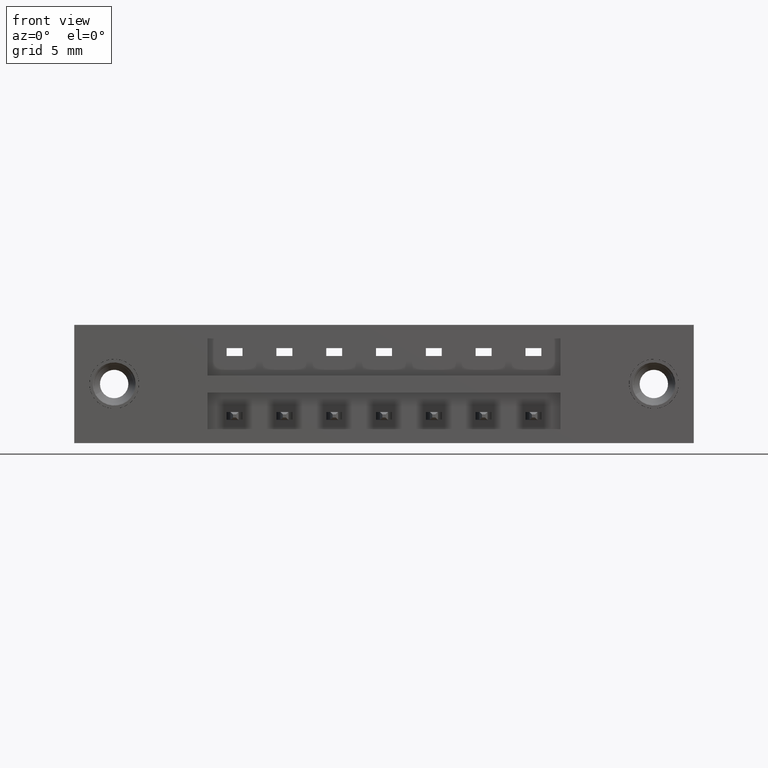
[diagram: clean part render]
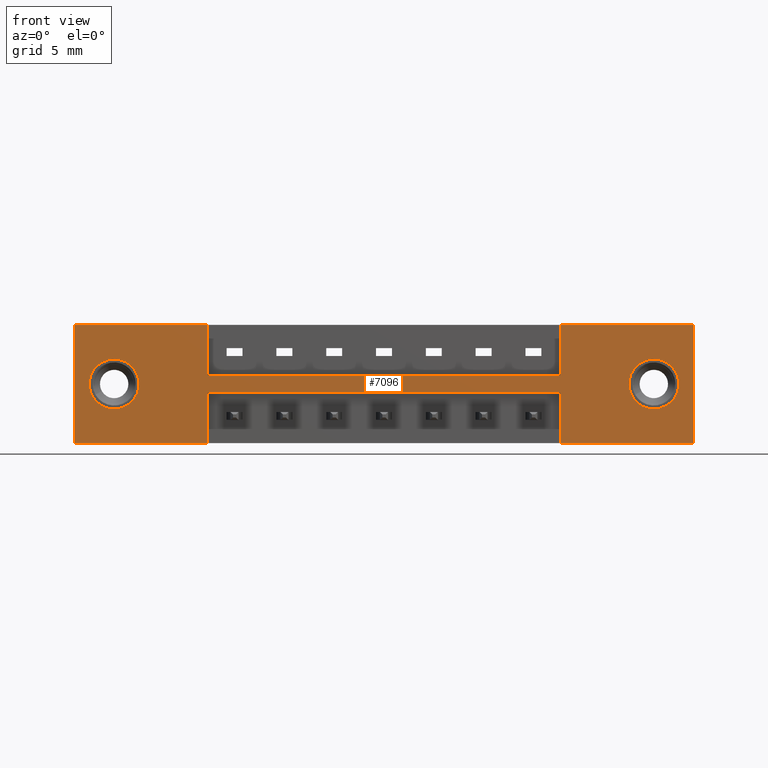
[diagram: same view with one face highlighted and labeled with its STEP entity id]
A machine part, front view. The second image highlights one B-rep face of the part: STEP entity #7096.
In plain terms, the highlighted planar face has unit normal (0, -1, 0).
Its self-contained STEP definition (entity closure, byte-faithful):
#37 = DIRECTION ( 'NONE',  ( 0.0000000000000000000, 0.0000000000000000000, 1.000000000000000000 ) ) ;
#49 = CARTESIAN_POINT ( 'NONE',  ( 1.522500000000000200, 0.0000000000000000000, -0.2115000000000000200 ) ) ;
#144 = ORIENTED_EDGE ( 'NONE', *, *, #4954, .F. ) ;
#157 = LINE ( 'NONE', #4766, #9964 ) ;
#249 = CARTESIAN_POINT ( 'NONE',  ( 0.4174999999999999800, 0.0000000000000000000, -0.1585000000000000300 ) ) ;
#330 = VERTEX_POINT ( 'NONE', #5168 ) ;
#356 = ORIENTED_EDGE ( 'NONE', *, *, #5249, .F. ) ;
#391 = FACE_OUTER_BOUND ( 'NONE', #4185, .T. ) ;
#471 = ORIENTED_EDGE ( 'NONE', *, *, #2980, .F. ) ;
#515 = DIRECTION ( 'NONE',  ( 1.000000000000000000, 0.0000000000000000000, 0.0000000000000000000 ) ) ;
#628 = VECTOR ( 'NONE', #5884, 39.37007874015748100 ) ;
#645 = CARTESIAN_POINT ( 'NONE',  ( 1.522500000000000200, 0.0000000000000000000, -0.1585000000000000000 ) ) ;
#754 = CIRCLE ( 'NONE', #3179, 0.07800000000000001400 ) ;
#899 = EDGE_CURVE ( 'NONE', #6420, #7991, #7041, .T. ) ;
#916 = VECTOR ( 'NONE', #9408, 39.37007874015748100 ) ;
#1042 = DIRECTION ( 'NONE',  ( 0.0000000000000000000, -0.0000000000000000000, -1.000000000000000000 ) ) ;
#1121 = VERTEX_POINT ( 'NONE', #7771 ) ;
#1147 = CARTESIAN_POINT ( 'NONE',  ( 0.0000000000000000000, 0.0000000000000000000, 0.0000000000000000000 ) ) ;
#1166 = CIRCLE ( 'NONE', #5996, 0.07800000000000009700 ) ;
#1387 = LINE ( 'NONE', #645, #3244 ) ;
#1440 = ORIENTED_EDGE ( 'NONE', *, *, #7711, .T. ) ;
#1461 = EDGE_CURVE ( 'NONE', #330, #6774, #3519, .T. ) ;
#1501 = EDGE_CURVE ( 'NONE', #6774, #330, #1166, .T. ) ;
#1563 = ORIENTED_EDGE ( 'NONE', *, *, #7123, .F. ) ;
#1642 = EDGE_CURVE ( 'NONE', #9891, #7034, #1933, .T. ) ;
#1716 = VERTEX_POINT ( 'NONE', #7749 ) ;
#1933 = LINE ( 'NONE', #49, #6085 ) ;
#1972 = VERTEX_POINT ( 'NONE', #5154 ) ;
#2149 = DIRECTION ( 'NONE',  ( 0.0000000000000000000, 0.0000000000000000000, -1.000000000000000000 ) ) ;
#2200 = VERTEX_POINT ( 'NONE', #4644 ) ;
#2238 = CIRCLE ( 'NONE', #8976, 0.07800000000000001400 ) ;
#2336 = DIRECTION ( 'NONE',  ( 0.0000000000000000000, 0.0000000000000000000, -1.000000000000000000 ) ) ;
#2503 = EDGE_LOOP ( 'NONE', ( #5920, #4828 ) ) ;
#2519 = FACE_BOUND ( 'NONE', #2503, .T. ) ;
#2520 = CARTESIAN_POINT ( 'NONE',  ( 1.940000000000000200, 0.0000000000000000000, 0.0000000000000000000 ) ) ;
#2541 = LINE ( 'NONE', #4036, #916 ) ;
#2599 = CARTESIAN_POINT ( 'NONE',  ( 1.815000000000000200, 0.0000000000000000000, -0.1850000000000002200 ) ) ;
#2737 = LINE ( 'NONE', #8919, #628 ) ;
#2820 = CARTESIAN_POINT ( 'NONE',  ( 1.940000000000000200, 0.0000000000000000000, 0.0000000000000000000 ) ) ;
#2837 = DIRECTION ( 'NONE',  ( -0.0000000000000000000, -0.0000000000000000000, -1.000000000000000000 ) ) ;
#2888 = VECTOR ( 'NONE', #6619, 39.37007874015748100 ) ;
#2980 = EDGE_CURVE ( 'NONE', #7034, #2200, #2541, .T. ) ;
#3124 = DIRECTION ( 'NONE',  ( 0.0000000000000000000, 1.000000000000000000, 0.0000000000000000000 ) ) ;
#3127 = CARTESIAN_POINT ( 'NONE',  ( 0.4174999999999997000, 0.0000000000000000000, -0.2114999999999999900 ) ) ;
#3168 = CARTESIAN_POINT ( 'NONE',  ( 1.522500000000000200, 0.0000000000000000000, -0.3700000000000000000 ) ) ;
#3179 = AXIS2_PLACEMENT_3D ( 'NONE', #7753, #3124, #8511 ) ;
#3244 = VECTOR ( 'NONE', #6908, 39.37007874015748100 ) ;
#3280 = CARTESIAN_POINT ( 'NONE',  ( 1.522500000000000200, 0.0000000000000000000, -0.1585000000000000000 ) ) ;
#3358 = ORIENTED_EDGE ( 'NONE', *, *, #899, .F. ) ;
#3389 = AXIS2_PLACEMENT_3D ( 'NONE', #7475, #9519, #6215 ) ;
#3391 = DIRECTION ( 'NONE',  ( -1.000000000000000000, -0.0000000000000000000, -0.0000000000000000000 ) ) ;
#3519 = CIRCLE ( 'NONE', #3389, 0.07800000000000009700 ) ;
#3606 = CARTESIAN_POINT ( 'NONE',  ( 0.0000000000000000000, 0.0000000000000000000, 0.0000000000000000000 ) ) ;
#3706 = ORIENTED_EDGE ( 'NONE', *, *, #5346, .F. ) ;
#3799 = DIRECTION ( 'NONE',  ( 0.0000000000000000000, 1.000000000000000000, -0.0000000000000000000 ) ) ;
#3955 = AXIS2_PLACEMENT_3D ( 'NONE', #8524, #4724, #1042 ) ;
#3998 = LINE ( 'NONE', #9774, #6063 ) ;
#4036 = CARTESIAN_POINT ( 'NONE',  ( 0.4174999999999997000, 0.0000000000000000000, -0.2114999999999999900 ) ) ;
#4106 = CARTESIAN_POINT ( 'NONE',  ( 0.0000000000000000000, 0.0000000000000000000, 0.0000000000000000000 ) ) ;
#4140 = VERTEX_POINT ( 'NONE', #5452 ) ;
#4185 = EDGE_LOOP ( 'NONE', ( #7241, #7624, #8107, #356, #6494, #1563, #3706, #8504, #5987, #3358, #144, #471 ) ) ;
#4321 = VERTEX_POINT ( 'NONE', #4106 ) ;
#4325 = VECTOR ( 'NONE', #4388, 39.37007874015748100 ) ;
#4364 = DIRECTION ( 'NONE',  ( 0.0000000000000000000, 0.0000000000000000000, -1.000000000000000000 ) ) ;
#4388 = DIRECTION ( 'NONE',  ( -0.0000000000000000000, -0.0000000000000000000, 1.000000000000000000 ) ) ;
#4584 = CARTESIAN_POINT ( 'NONE',  ( 0.0000000000000000000, 0.0000000000000000000, -0.3700000000000000000 ) ) ;
#4621 = CARTESIAN_POINT ( 'NONE',  ( 1.522500000000000200, 0.0000000000000000000, -0.2115000000000000200 ) ) ;
#4644 = CARTESIAN_POINT ( 'NONE',  ( 0.4174999999999997000, 0.0000000000000000000, -0.2114999999999999900 ) ) ;
#4724 = DIRECTION ( 'NONE',  ( 0.0000000000000000000, -1.000000000000000000, 0.0000000000000000000 ) ) ;
#4766 = CARTESIAN_POINT ( 'NONE',  ( 0.4174999999999999800, 0.0000000000000000000, -0.1585000000000000300 ) ) ;
#4775 = DIRECTION ( 'NONE',  ( 0.0000000000000000000, 1.000000000000000000, 0.0000000000000000000 ) ) ;
#4828 = ORIENTED_EDGE ( 'NONE', *, *, #1461, .T. ) ;
#4954 = EDGE_CURVE ( 'NONE', #2200, #6420, #8991, .T. ) ;
#4982 = LINE ( 'NONE', #1147, #2888 ) ;
#5001 = VECTOR ( 'NONE', #3391, 39.37007874015748100 ) ;
#5136 = CARTESIAN_POINT ( 'NONE',  ( 1.815000000000000200, 0.0000000000000000000, -0.1070000000000001400 ) ) ;
#5154 = CARTESIAN_POINT ( 'NONE',  ( 0.1250000000000001900, 0.0000000000000000000, -0.2629999999999987300 ) ) ;
#5168 = CARTESIAN_POINT ( 'NONE',  ( 1.815000000000000200, 0.0000000000000000000, -0.2630000000000002900 ) ) ;
#5249 = EDGE_CURVE ( 'NONE', #1716, #7893, #4982, .T. ) ;
#5345 = CARTESIAN_POINT ( 'NONE',  ( 0.4174999999999998700, 0.0000000000000000000, 0.0000000000000000000 ) ) ;
#5346 = EDGE_CURVE ( 'NONE', #5479, #5848, #3998, .T. ) ;
#5377 = EDGE_CURVE ( 'NONE', #4321, #5479, #7853, .T. ) ;
#5452 = CARTESIAN_POINT ( 'NONE',  ( 0.1250000000000001900, 0.0000000000000000000, -0.1069999999999986900 ) ) ;
#5471 = PLANE ( 'NONE',  #3955 ) ;
#5479 = VERTEX_POINT ( 'NONE', #5345 ) ;
#5528 = VECTOR ( 'NONE', #4364, 39.37007874015748100 ) ;
#5535 = DIRECTION ( 'NONE',  ( 1.000000000000000000, 0.0000000000000000000, 3.090325784688080100E-017 ) ) ;
#5652 = DIRECTION ( 'NONE',  ( -0.0000000000000000000, -0.0000000000000000000, 1.000000000000000000 ) ) ;
#5848 = VERTEX_POINT ( 'NONE', #249 ) ;
#5884 = DIRECTION ( 'NONE',  ( -1.000000000000000000, -0.0000000000000000000, -0.0000000000000000000 ) ) ;
#5920 = ORIENTED_EDGE ( 'NONE', *, *, #1501, .T. ) ;
#5987 = ORIENTED_EDGE ( 'NONE', *, *, #7526, .F. ) ;
#5996 = AXIS2_PLACEMENT_3D ( 'NONE', #2599, #3799, #2149 ) ;
#6063 = VECTOR ( 'NONE', #2837, 39.37007874015748100 ) ;
#6085 = VECTOR ( 'NONE', #5652, 39.37007874015748100 ) ;
#6215 = DIRECTION ( 'NONE',  ( 0.0000000000000000000, 0.0000000000000000000, -1.000000000000000000 ) ) ;
#6386 = LINE ( 'NONE', #3606, #4325 ) ;
#6395 = FACE_BOUND ( 'NONE', #7089, .T. ) ;
#6420 = VERTEX_POINT ( 'NONE', #8535 ) ;
#6494 = ORIENTED_EDGE ( 'NONE', *, *, #6997, .F. ) ;
#6619 = DIRECTION ( 'NONE',  ( 1.000000000000000000, 0.0000000000000000000, 0.0000000000000000000 ) ) ;
#6774 = VERTEX_POINT ( 'NONE', #5136 ) ;
#6908 = DIRECTION ( 'NONE',  ( 0.0000000000000000000, 0.0000000000000000000, 1.000000000000000000 ) ) ;
#6982 = VECTOR ( 'NONE', #2336, 39.37007874015748100 ) ;
#6997 = EDGE_CURVE ( 'NONE', #8493, #1716, #1387, .T. ) ;
#7034 = VERTEX_POINT ( 'NONE', #4621 ) ;
#7041 = LINE ( 'NONE', #4584, #5001 ) ;
#7089 = EDGE_LOOP ( 'NONE', ( #1440, #7144 ) ) ;
#7096 = ADVANCED_FACE ( 'NONE', ( #2519, #6395, #391 ), #5471, .T. ) ;
#7123 = EDGE_CURVE ( 'NONE', #5848, #8493, #157, .T. ) ;
#7144 = ORIENTED_EDGE ( 'NONE', *, *, #8409, .T. ) ;
#7241 = ORIENTED_EDGE ( 'NONE', *, *, #1642, .F. ) ;
#7305 = LINE ( 'NONE', #2820, #5528 ) ;
#7472 = EDGE_CURVE ( 'NONE', #1121, #9891, #2737, .T. ) ;
#7475 = CARTESIAN_POINT ( 'NONE',  ( 1.815000000000000200, 0.0000000000000000000, -0.1850000000000002200 ) ) ;
#7526 = EDGE_CURVE ( 'NONE', #7991, #4321, #6386, .T. ) ;
#7603 = VECTOR ( 'NONE', #515, 39.37007874015748100 ) ;
#7624 = ORIENTED_EDGE ( 'NONE', *, *, #7472, .F. ) ;
#7711 = EDGE_CURVE ( 'NONE', #4140, #1972, #754, .T. ) ;
#7749 = CARTESIAN_POINT ( 'NONE',  ( 1.522500000000000200, 0.0000000000000000000, 0.0000000000000000000 ) ) ;
#7753 = CARTESIAN_POINT ( 'NONE',  ( 0.1250000000000001900, 0.0000000000000000000, -0.1849999999999987200 ) ) ;
#7771 = CARTESIAN_POINT ( 'NONE',  ( 1.940000000000000200, 0.0000000000000000000, -0.3700000000000000000 ) ) ;
#7853 = LINE ( 'NONE', #9044, #7603 ) ;
#7893 = VERTEX_POINT ( 'NONE', #2520 ) ;
#7991 = VERTEX_POINT ( 'NONE', #8008 ) ;
#8008 = CARTESIAN_POINT ( 'NONE',  ( 0.0000000000000000000, 0.0000000000000000000, -0.3700000000000000000 ) ) ;
#8107 = ORIENTED_EDGE ( 'NONE', *, *, #9618, .F. ) ;
#8409 = EDGE_CURVE ( 'NONE', #1972, #4140, #2238, .T. ) ;
#8493 = VERTEX_POINT ( 'NONE', #3280 ) ;
#8504 = ORIENTED_EDGE ( 'NONE', *, *, #5377, .F. ) ;
#8511 = DIRECTION ( 'NONE',  ( 0.0000000000000000000, 0.0000000000000000000, 1.000000000000000000 ) ) ;
#8524 = CARTESIAN_POINT ( 'NONE',  ( 0.0000000000000000000, 0.0000000000000000000, -0.3700000000000000000 ) ) ;
#8535 = CARTESIAN_POINT ( 'NONE',  ( 0.4174999999999997000, 0.0000000000000000000, -0.3700000000000000000 ) ) ;
#8919 = CARTESIAN_POINT ( 'NONE',  ( 0.0000000000000000000, 0.0000000000000000000, -0.3700000000000000000 ) ) ;
#8976 = AXIS2_PLACEMENT_3D ( 'NONE', #9339, #4775, #37 ) ;
#8991 = LINE ( 'NONE', #3127, #6982 ) ;
#9044 = CARTESIAN_POINT ( 'NONE',  ( 0.0000000000000000000, 0.0000000000000000000, 0.0000000000000000000 ) ) ;
#9339 = CARTESIAN_POINT ( 'NONE',  ( 0.1250000000000001900, 0.0000000000000000000, -0.1849999999999987200 ) ) ;
#9408 = DIRECTION ( 'NONE',  ( -1.000000000000000000, -0.0000000000000000000, 3.090325784688079500E-017 ) ) ;
#9519 = DIRECTION ( 'NONE',  ( 0.0000000000000000000, 1.000000000000000000, -0.0000000000000000000 ) ) ;
#9618 = EDGE_CURVE ( 'NONE', #7893, #1121, #7305, .T. ) ;
#9774 = CARTESIAN_POINT ( 'NONE',  ( 0.4174999999999999800, 0.0000000000000000000, -0.1585000000000000300 ) ) ;
#9891 = VERTEX_POINT ( 'NONE', #3168 ) ;
#9964 = VECTOR ( 'NONE', #5535, 39.37007874015748100 ) ;